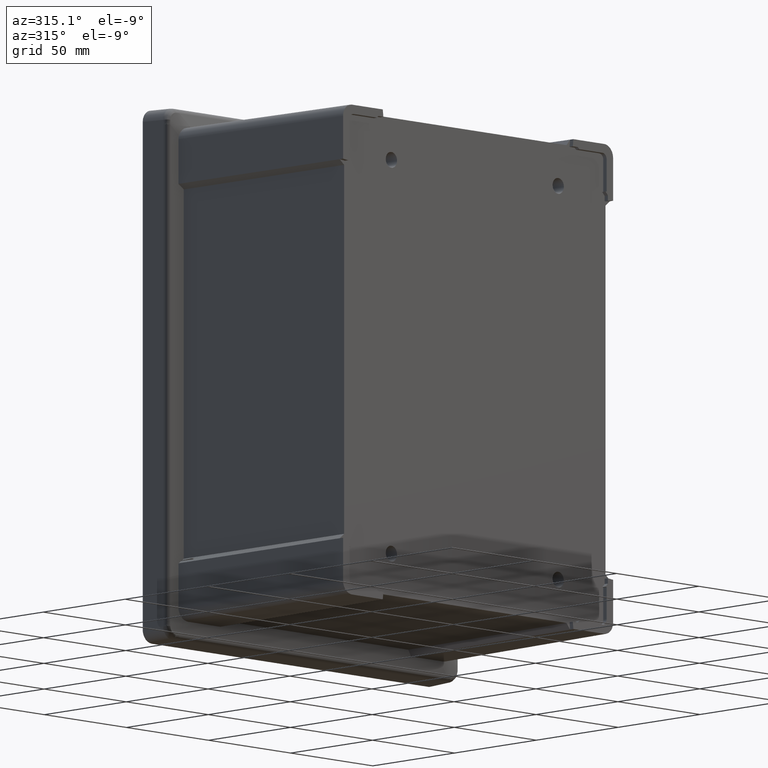
[diagram: clean part render]
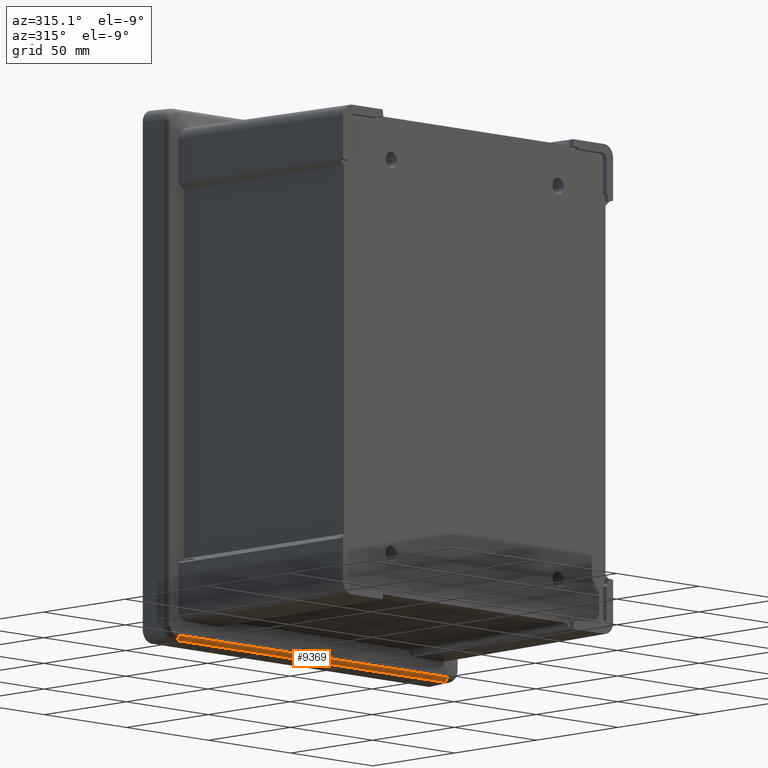
[diagram: same view with one face highlighted and labeled with its STEP entity id]
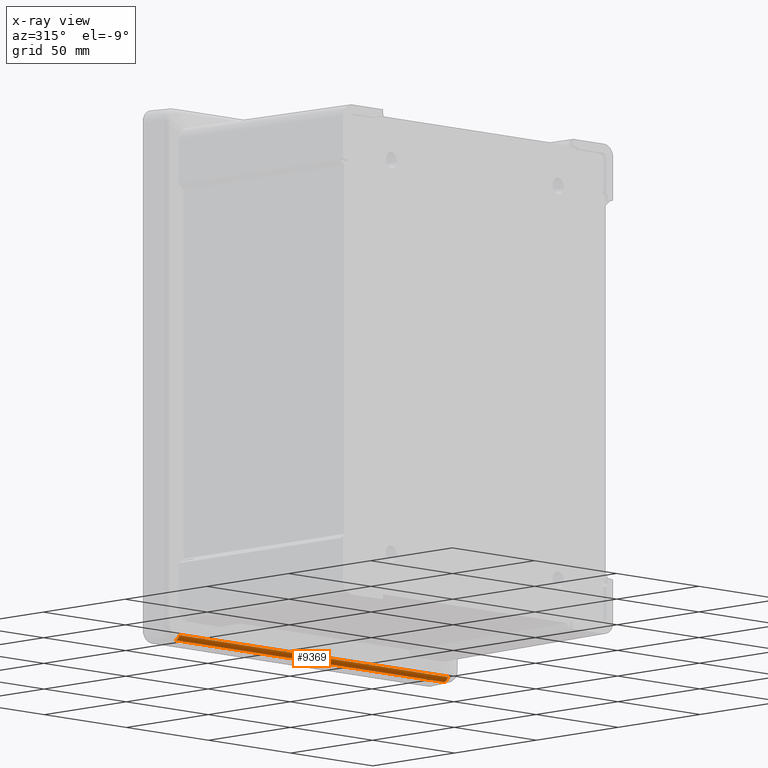
[diagram: x-ray of the same camera — body ghosted, the highlighted face saturated]
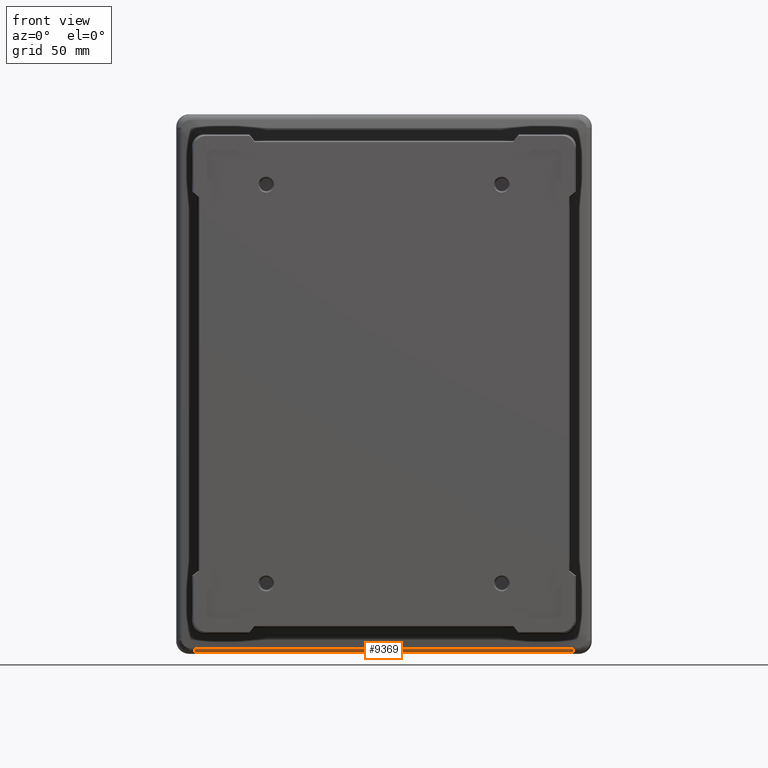
[diagram: same view with one face highlighted and labeled with its STEP entity id]
A machine part, auxiliary view. The second image highlights one B-rep face of the part: STEP entity #9369.
The next image is the same camera in x-ray: the body ghosted, the highlighted face saturated — about 0% of this face is hidden behind the body in this view.
A second angle (front view) of the same face is appended — the face is thin or edge-on in the first view.
In plain terms, the highlighted cylindrical surface (edge-blend (fillet) strip) has radius 2.5 mm, axis along (1, 0, 0).
Its self-contained STEP definition (entity closure, byte-faithful):
#1 = VERTEX_POINT ( 'NONE', #9888 ) ;
#57 = DIRECTION ( 'NONE',  ( 0.0000000000000000000, 0.0000000000000000000, -1.000000000000000000 ) ) ;
#295 = AXIS2_PLACEMENT_3D ( 'NONE', #2593, #14714, #57 ) ;
#965 = EDGE_CURVE ( 'NONE', #4502, #10836, #4016, .T. ) ;
#2363 = CARTESIAN_POINT ( 'NONE',  ( 81.73695200340387100, -12.04797577896829500, -115.9753096505777300 ) ) ;
#2593 = CARTESIAN_POINT ( 'NONE',  ( -89.15714346271285300, -11.96072703721204200, -113.4768325830299900 ) ) ;
#2894 = EDGE_CURVE ( 'NONE', #6906, #1, #14903, .T. ) ;
#3130 = ORIENTED_EDGE ( 'NONE', *, *, #965, .F. ) ;
#3623 = VECTOR ( 'NONE', #6548, 1000.000000000000000 ) ;
#4016 = LINE ( 'NONE', #14474, #3623 ) ;
#4450 = AXIS2_PLACEMENT_3D ( 'NONE', #14239, #8314, #14295 ) ;
#4502 = VERTEX_POINT ( 'NONE', #11808 ) ;
#5559 = FACE_OUTER_BOUND ( 'NONE', #15349, .T. ) ;
#6168 = DIRECTION ( 'NONE',  ( -1.000000000000000000, 0.0000000000000000000, 0.0000000000000000000 ) ) ;
#6548 = DIRECTION ( 'NONE',  ( 1.000000000000000000, -0.0000000000000000000, -0.0000000000000000000 ) ) ;
#6773 = DIRECTION ( 'NONE',  ( -1.000000000000000000, 0.0000000000000000000, 0.0000000000000000000 ) ) ;
#6906 = VERTEX_POINT ( 'NONE', #2363 ) ;
#8314 = DIRECTION ( 'NONE',  ( -1.000000000000000000, 0.0000000000000000000, 0.0000000000000000000 ) ) ;
#9369 = ADVANCED_FACE ( 'NONE', ( #5559 ), #13241, .T. ) ;
#9888 = CARTESIAN_POINT ( 'NONE',  ( -81.73695200340391400, -12.04797577896829500, -115.9753096505777300 ) ) ;
#9947 = CARTESIAN_POINT ( 'NONE',  ( 81.73695200340387100, -14.40609603904655400, -113.9966118100744000 ) ) ;
#10059 = ORIENTED_EDGE ( 'NONE', *, *, #2894, .F. ) ;
#10203 = AXIS2_PLACEMENT_3D ( 'NONE', #12873, #6773, #10481 ) ;
#10308 = VECTOR ( 'NONE', #6168, 1000.000000000000000 ) ;
#10481 = DIRECTION ( 'NONE',  ( 0.0000000000000000000, 0.0000000000000000000, 1.000000000000000000 ) ) ;
#10599 = CIRCLE ( 'NONE', #4450, 2.500000000000002200 ) ;
#10740 = ORIENTED_EDGE ( 'NONE', *, *, #12969, .F. ) ;
#10836 = VERTEX_POINT ( 'NONE', #9947 ) ;
#11046 = CARTESIAN_POINT ( 'NONE',  ( -89.64603423559731300, -12.04797577896829500, -115.9753096505777300 ) ) ;
#11808 = CARTESIAN_POINT ( 'NONE',  ( -81.73695200340391400, -14.40609603904655800, -113.9966118100744000 ) ) ;
#11995 = CIRCLE ( 'NONE', #10203, 2.500000000000002200 ) ;
#12873 = CARTESIAN_POINT ( 'NONE',  ( -81.73695200340391400, -11.96072703721204400, -113.4768325830299900 ) ) ;
#12969 = EDGE_CURVE ( 'NONE', #1, #4502, #11995, .T. ) ;
#13241 = CYLINDRICAL_SURFACE ( 'NONE', #295, 2.500000000000002200 ) ;
#13456 = ORIENTED_EDGE ( 'NONE', *, *, #14887, .T. ) ;
#14239 = CARTESIAN_POINT ( 'NONE',  ( 81.73695200340387100, -11.96072703721204400, -113.4768325830299900 ) ) ;
#14295 = DIRECTION ( 'NONE',  ( 0.0000000000000000000, 0.0000000000000000000, 1.000000000000000000 ) ) ;
#14474 = CARTESIAN_POINT ( 'NONE',  ( -89.15714346271285300, -14.40609603904655800, -113.9966118100743800 ) ) ;
#14714 = DIRECTION ( 'NONE',  ( 1.000000000000000000, 0.0000000000000000000, 0.0000000000000000000 ) ) ;
#14887 = EDGE_CURVE ( 'NONE', #6906, #10836, #10599, .T. ) ;
#14903 = LINE ( 'NONE', #11046, #10308 ) ;
#15349 = EDGE_LOOP ( 'NONE', ( #13456, #3130, #10740, #10059 ) ) ;